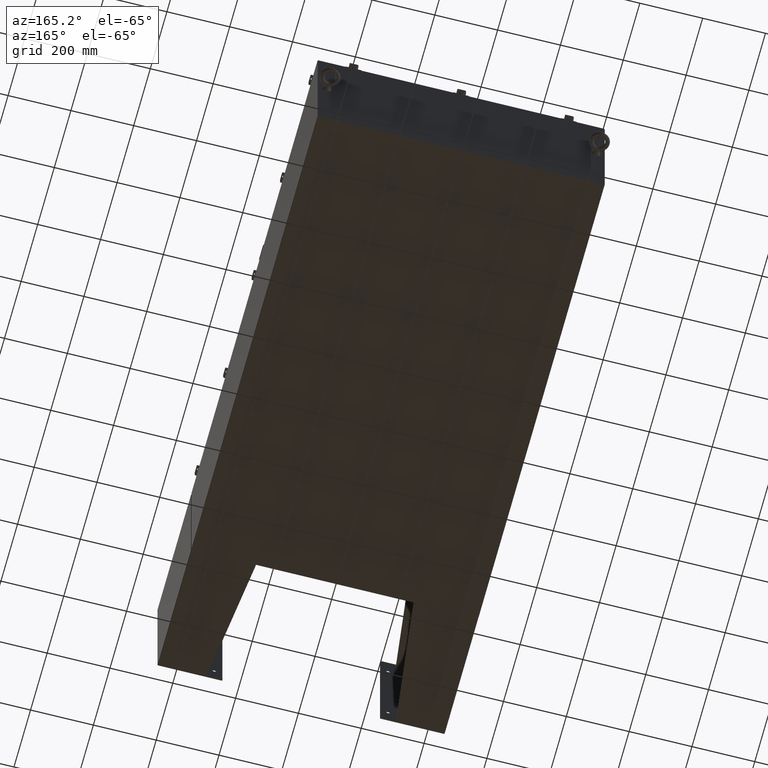
[diagram: clean part render]
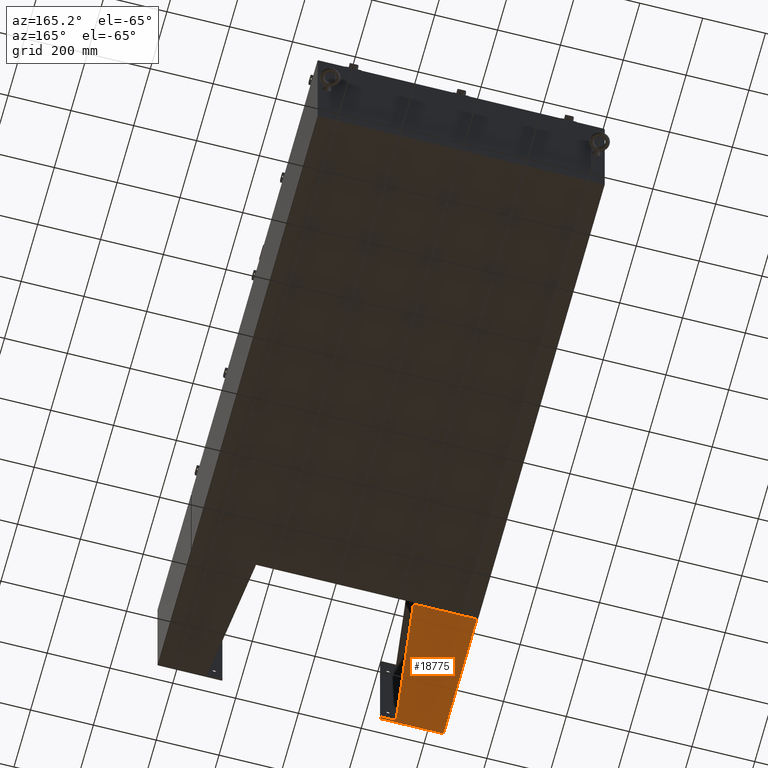
[diagram: same view with one face highlighted and labeled with its STEP entity id]
A machine part, auxiliary view. The second image highlights one B-rep face of the part: STEP entity #18775.
In plain terms, the highlighted planar face has unit normal (-0, -0, 1).
Its self-contained STEP definition (entity closure, byte-faithful):
#2524 = ORIENTED_EDGE ( 'NONE', *, *, #19877, .F. ) ;
#3068 = CARTESIAN_POINT ( 'NONE',  ( 8.000000000000014200, 7.857000000000001100, 8.001000000000015400 ) ) ;
#3983 = VERTEX_POINT ( 'NONE', #3068 ) ;
#4025 = VECTOR ( 'NONE', #60995, 39.37007874015748100 ) ;
#5424 = CARTESIAN_POINT ( 'NONE',  ( 8.000000000000028400, -7.999999999999999100, 8.001000000000015400 ) ) ;
#8212 = DIRECTION ( 'NONE',  ( 0.0000000000000000000, 0.0000000000000000000, 1.000000000000000000 ) ) ;
#10810 = EDGE_CURVE ( 'NONE', #30551, #16457, #40910, .T. ) ;
#10900 = VERTEX_POINT ( 'NONE', #29518 ) ;
#11340 = CARTESIAN_POINT ( 'NONE',  ( 8.000000000000001800, -7.999999999999993800, 0.03899999999999890400 ) ) ;
#14952 = DIRECTION ( 'NONE',  ( 3.550958521948298200E-015, 0.0000000000000000000, 1.000000000000000000 ) ) ;
#16003 = VECTOR ( 'NONE', #20925, 39.37007874015748100 ) ;
#16457 = VERTEX_POINT ( 'NONE', #61124 ) ;
#16644 = VECTOR ( 'NONE', #38226, 39.37007874015748100 ) ;
#17473 = PLANE ( 'NONE',  #42235 ) ;
#18080 = EDGE_CURVE ( 'NONE', #30551, #10900, #46022, .T. ) ;
#18775 = ADVANCED_FACE ( 'NONE', ( #62377 ), #17473, .F. ) ;
#19877 = EDGE_CURVE ( 'NONE', #44431, #52062, #45758, .T. ) ;
#20925 = DIRECTION ( 'NONE',  ( -3.550958521948298200E-015, 0.0000000000000000000, -1.000000000000000000 ) ) ;
#21856 = CARTESIAN_POINT ( 'NONE',  ( 8.000000000000019500, -7.749999999999999100, 6.052216497445943600 ) ) ;
#22993 = CARTESIAN_POINT ( 'NONE',  ( 8.000000000000028400, -7.999999999999999100, 8.001000000000015400 ) ) ;
#23655 = LINE ( 'NONE', #21856, #54882 ) ;
#24192 = ORIENTED_EDGE ( 'NONE', *, *, #39388, .F. ) ;
#25299 = VECTOR ( 'NONE', #8212, 39.37007874015748100 ) ;
#29518 = CARTESIAN_POINT ( 'NONE',  ( 8.000000000000021300, -7.749999999999999100, 6.052216497445943600 ) ) ;
#30551 = VERTEX_POINT ( 'NONE', #37639 ) ;
#31603 = EDGE_CURVE ( 'NONE', #44431, #3983, #40861, .T. ) ;
#33292 = ORIENTED_EDGE ( 'NONE', *, *, #10810, .T. ) ;
#34954 = CARTESIAN_POINT ( 'NONE',  ( 8.000000000000028400, -7.999999999999999100, 8.001000000000015400 ) ) ;
#35214 = EDGE_LOOP ( 'NONE', ( #58748, #33292, #52679, #2524, #49633, #24192 ) ) ;
#35870 = EDGE_CURVE ( 'NONE', #16457, #52062, #59375, .T. ) ;
#37148 = DIRECTION ( 'NONE',  ( -1.000000000000000000, 0.0000000000000000000, 3.550958521948298200E-015 ) ) ;
#37639 = CARTESIAN_POINT ( 'NONE',  ( 8.000000000000028400, -7.749999999999999100, 8.001000000000022500 ) ) ;
#38168 = DIRECTION ( 'NONE',  ( 0.0000000000000000000, -1.000000000000000000, 0.0000000000000000000 ) ) ;
#38226 = DIRECTION ( 'NONE',  ( -3.550958521948298200E-015, -0.0000000000000000000, -1.000000000000000000 ) ) ;
#39388 = EDGE_CURVE ( 'NONE', #10900, #3983, #23655, .T. ) ;
#40861 = LINE ( 'NONE', #44768, #25299 ) ;
#40910 = LINE ( 'NONE', #34954, #67188 ) ;
#42235 = AXIS2_PLACEMENT_3D ( 'NONE', #22993, #37148, #14952 ) ;
#44431 = VERTEX_POINT ( 'NONE', #66032 ) ;
#44768 = CARTESIAN_POINT ( 'NONE',  ( 8.000000000000014200, 7.857000000000001100, 0.03900000000001453000 ) ) ;
#45132 = CARTESIAN_POINT ( 'NONE',  ( 8.000000000000000000, -7.999999999999999100, 0.03900000000001453000 ) ) ;
#45758 = LINE ( 'NONE', #45132, #4025 ) ;
#46022 = LINE ( 'NONE', #51071, #16644 ) ;
#49633 = ORIENTED_EDGE ( 'NONE', *, *, #31603, .T. ) ;
#51071 = CARTESIAN_POINT ( 'NONE',  ( 8.000000000000028400, -7.749999999999999100, 8.001000000000015400 ) ) ;
#52062 = VERTEX_POINT ( 'NONE', #11340 ) ;
#52679 = ORIENTED_EDGE ( 'NONE', *, *, #35870, .T. ) ;
#54882 = VECTOR ( 'NONE', #58560, 39.37007874015748900 ) ;
#58560 = DIRECTION ( 'NONE',  ( 4.399772607369799400E-016, 0.9922942345449394800, 0.1239038017531047700 ) ) ;
#58748 = ORIENTED_EDGE ( 'NONE', *, *, #18080, .F. ) ;
#59375 = LINE ( 'NONE', #5424, #16003 ) ;
#60995 = DIRECTION ( 'NONE',  ( -0.0000000000000000000, -1.000000000000000000, 0.0000000000000000000 ) ) ;
#61124 = CARTESIAN_POINT ( 'NONE',  ( 8.000000000000028400, -7.999999999999999100, 8.001000000000015400 ) ) ;
#62377 = FACE_OUTER_BOUND ( 'NONE', #35214, .T. ) ;
#66032 = CARTESIAN_POINT ( 'NONE',  ( 8.000000000000014200, 7.857000000000001100, 0.03900000000001453000 ) ) ;
#67188 = VECTOR ( 'NONE', #38168, 39.37007874015748100 ) ;